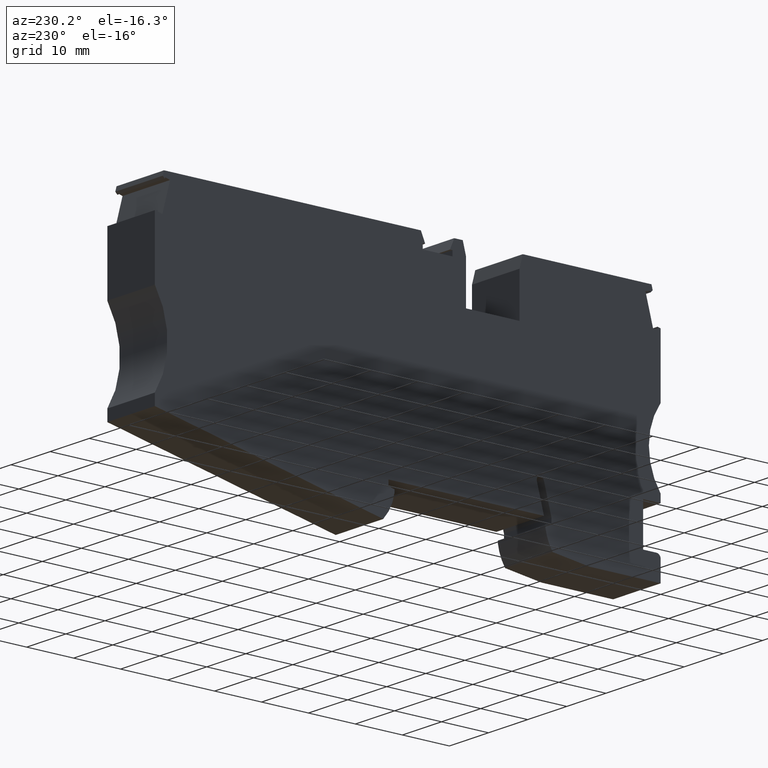
[diagram: clean part render]
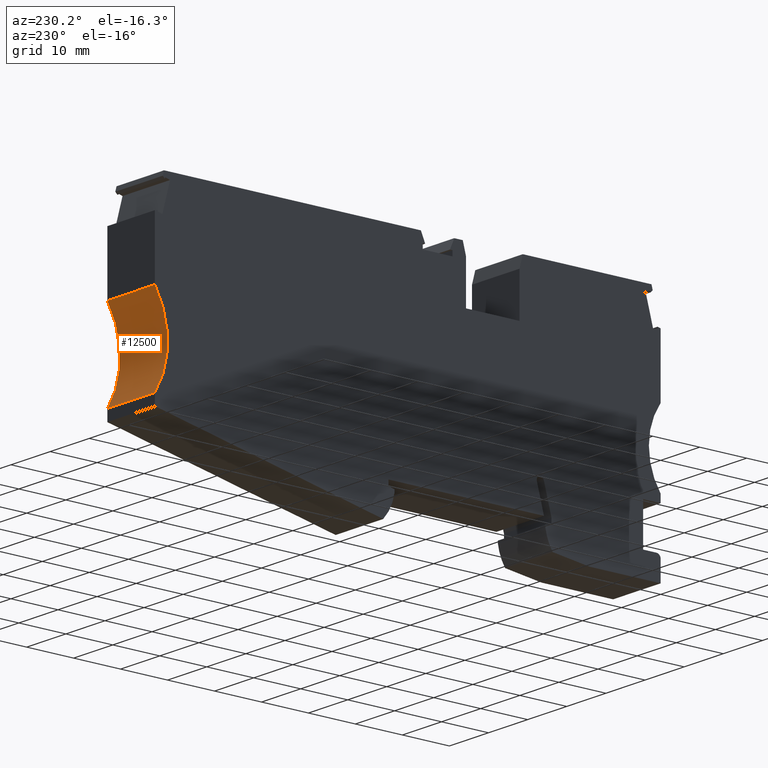
[diagram: same view with one face highlighted and labeled with its STEP entity id]
A machine part, auxiliary view. The second image highlights one B-rep face of the part: STEP entity #12500.
In plain terms, the highlighted cylindrical surface (partial cylindrical patch) has radius 17 mm, axis along (-1, 0, 0).
Its self-contained STEP definition (entity closure, byte-faithful):
#200=CARTESIAN_POINT('',(65.2292389956101,5.50241428509999,-323.65));
#210=VERTEX_POINT('',#200);
#240=CARTESIAN_POINT('',(79.5292389956101,14.6953463527267,
-323.649999999954));
#250=DIRECTION('',(0.,0.,-1.));
#260=DIRECTION('',(-1.,0.,0.));
#270=AXIS2_PLACEMENT_3D('',#240,#250,#260);
#280=CIRCLE('',#270,17.);
#290=CARTESIAN_POINT('',(65.2292389956222,23.8882784203722,-323.65));
#300=VERTEX_POINT('',#290);
#310=EDGE_CURVE('',#210,#300,#280,.T.);
#10910=CARTESIAN_POINT('',(65.2292389956222,23.8882784203722,-311.5));
#10920=VERTEX_POINT('',#10910);
#10950=CARTESIAN_POINT('',(79.5292389956101,14.6953463527267,
-311.500000000187));
#10960=DIRECTION('',(0.,0.,-1.));
#10970=DIRECTION('',(-1.,0.,0.));
#10980=AXIS2_PLACEMENT_3D('',#10950,#10960,#10970);
#10990=CIRCLE('',#10980,17.);
#11000=CARTESIAN_POINT('',(65.2292389956101,5.50241428509999,-311.5));
#11010=VERTEX_POINT('',#11000);
#11020=EDGE_CURVE('',#11010,#10920,#10990,.T.);
#11700=CARTESIAN_POINT('',(65.2292389956101,5.50241428509999,
-323.649999999954));
#11710=DIRECTION('',(0.,0.,-1.));
#11720=VECTOR('',#11710,1.);
#11730=LINE('',#11700,#11720);
#11740=EDGE_CURVE('',#11010,#210,#11730,.T.);
#11920=CARTESIAN_POINT('',(65.2292389956222,23.8882784203722,
-323.649999999954));
#11930=DIRECTION('',(0.,0.,-1.));
#11940=VECTOR('',#11930,1.);
#11950=LINE('',#11920,#11940);
#11960=EDGE_CURVE('',#10920,#300,#11950,.T.);
#12390=CARTESIAN_POINT('',(79.5292389956101,14.6953463527267,
-323.649999999954));
#12400=DIRECTION('',(0.,0.,-1.));
#12410=DIRECTION('',(-1.,0.,0.));
#12420=AXIS2_PLACEMENT_3D('',#12390,#12400,#12410);
#12430=CYLINDRICAL_SURFACE('',#12420,17.);
#12440=ORIENTED_EDGE('',*,*,#310,.T.);
#12450=ORIENTED_EDGE('',*,*,#11740,.T.);
#12460=ORIENTED_EDGE('',*,*,#11020,.F.);
#12470=ORIENTED_EDGE('',*,*,#11960,.F.);
#12480=EDGE_LOOP('',(#12470,#12460,#12450,#12440));
#12490=FACE_OUTER_BOUND('',#12480,.T.);
#12500=ADVANCED_FACE('',(#12490),#12430,.F.);